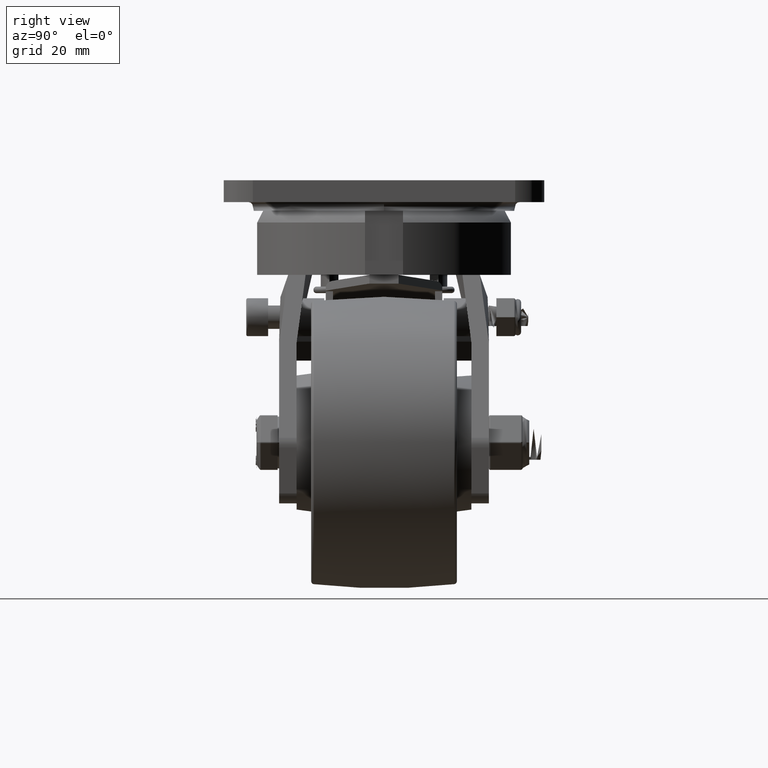
[diagram: clean part render]
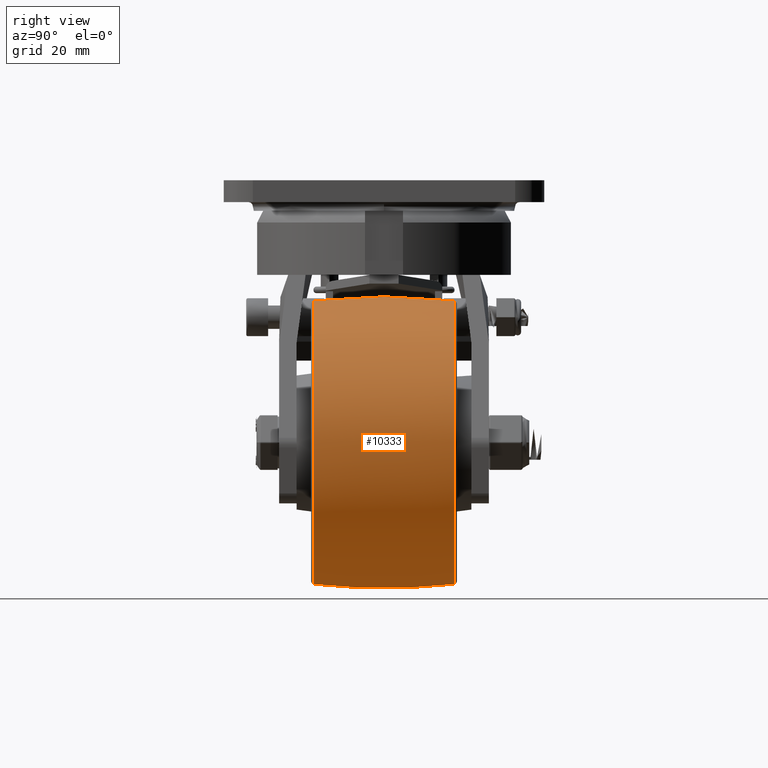
[diagram: same view with one face highlighted and labeled with its STEP entity id]
A machine part, right view. The second image highlights one B-rep face of the part: STEP entity #10333.
In plain terms, the highlighted face is a freeform B-spline surface patch.
Its self-contained STEP definition (entity closure, byte-faithful):
#667=(
BOUNDED_SURFACE()
B_SPLINE_SURFACE(2,2,((#15407,#15408,#15409,#15410,#15411,#15412,#15413,
#15414,#15415),(#15416,#15417,#15418,#15419,#15420,#15421,#15422,#15423,
#15424),(#15425,#15426,#15427,#15428,#15429,#15430,#15431,#15432,#15433)),
 .UNSPECIFIED.,.F.,.T.,.F.)
B_SPLINE_SURFACE_WITH_KNOTS((3,3),(3,2,2,2,3),(-0.115595672632397,0.115595672632396),
(-3.14159265358979,-1.5707963267949,0.,1.5707963267949,3.14159265358979),
 .UNSPECIFIED.)
GEOMETRIC_REPRESENTATION_ITEM()
RATIONAL_B_SPLINE_SURFACE(((1.,0.707106781186548,1.,0.707106781186548,1.,
0.707106781186548,1.,0.707106781186548,1.),(0.99332625661526,0.702387731983299,
0.99332625661526,0.702387731983299,0.99332625661526,0.702387731983299,0.99332625661526,
0.702387731983299,0.99332625661526),(1.,0.707106781186548,1.,0.707106781186548,
1.,0.707106781186548,1.,0.707106781186548,1.)))
REPRESENTATION_ITEM('')
SURFACE()
);
#1270=FACE_OUTER_BOUND('',#1904,.T.);
#1904=EDGE_LOOP('',(#7260,#7261,#7262,#7263));
#4271=CIRCLE('',#11247,48.6046314873025);
#4274=CIRCLE('',#11250,48.6046314873025);
#4275=CIRCLE('',#11251,209.083333333335);
#4704=VERTEX_POINT('',#15402);
#4706=VERTEX_POINT('',#15434);
#5707=EDGE_CURVE('',#4704,#4704,#4271,.T.);
#5710=EDGE_CURVE('',#4706,#4706,#4274,.T.);
#5711=EDGE_CURVE('',#4706,#4704,#4275,.T.);
#7260=ORIENTED_EDGE('',*,*,#5710,.F.);
#7261=ORIENTED_EDGE('',*,*,#5711,.T.);
#7262=ORIENTED_EDGE('',*,*,#5707,.T.);
#7263=ORIENTED_EDGE('',*,*,#5711,.F.);
#10333=ADVANCED_FACE('',(#1270),#667,.F.);
#11247=AXIS2_PLACEMENT_3D('',#15403,#12372,#12373);
#11250=AXIS2_PLACEMENT_3D('',#15435,#12378,#12379);
#11251=AXIS2_PLACEMENT_3D('',#15436,#12380,#12381);
#12372=DIRECTION('center_axis',(0.,1.,0.));
#12373=DIRECTION('ref_axis',(0.,0.,1.));
#12378=DIRECTION('center_axis',(0.,1.,0.));
#12379=DIRECTION('ref_axis',(0.,0.,1.));
#12380=DIRECTION('center_axis',(-1.,0.,1.22464679914735E-16));
#12381=DIRECTION('ref_axis',(-1.22464679914735E-16,0.,-1.));
#15402=CARTESIAN_POINT('',(5.95235063746617E-15,-24.1153384060875,-48.6046314873025));
#15403=CARTESIAN_POINT('Origin',(0.,-24.1153384060875,0.));
#15407=CARTESIAN_POINT('Ctrl Pts',(0.,-24.1153384060875,-48.6046314873025));
#15408=CARTESIAN_POINT('Ctrl Pts',(-48.6046314873025,-24.1153384060875,
-48.6046314873025));
#15409=CARTESIAN_POINT('Ctrl Pts',(-48.6046314873025,-24.1153384060875,
0.));
#15410=CARTESIAN_POINT('Ctrl Pts',(-48.6046314873025,-24.1153384060875,
48.6046314873025));
#15411=CARTESIAN_POINT('Ctrl Pts',(0.,-24.1153384060875,48.6046314873025));
#15412=CARTESIAN_POINT('Ctrl Pts',(48.6046314873025,-24.1153384060875,48.6046314873025));
#15413=CARTESIAN_POINT('Ctrl Pts',(48.6046314873025,-24.1153384060875,0.));
#15414=CARTESIAN_POINT('Ctrl Pts',(48.6046314873025,-24.1153384060875,-48.6046314873025));
#15415=CARTESIAN_POINT('Ctrl Pts',(0.,-24.1153384060875,-48.6046314873025));
#15416=CARTESIAN_POINT('Ctrl Pts',(0.,4.88498130835069E-14,-51.4047434097355));
#15417=CARTESIAN_POINT('Ctrl Pts',(-51.4047434097355,4.88498130835069E-14,
-51.4047434097355));
#15418=CARTESIAN_POINT('Ctrl Pts',(-51.4047434097355,4.88498130835069E-14,
0.));
#15419=CARTESIAN_POINT('Ctrl Pts',(-51.4047434097355,4.88498130835069E-14,
51.4047434097355));
#15420=CARTESIAN_POINT('Ctrl Pts',(0.,4.88498130835069E-14,51.4047434097355));
#15421=CARTESIAN_POINT('Ctrl Pts',(51.4047434097355,4.88498130835069E-14,
51.4047434097355));
#15422=CARTESIAN_POINT('Ctrl Pts',(51.4047434097355,4.88498130835069E-14,
0.));
#15423=CARTESIAN_POINT('Ctrl Pts',(51.4047434097355,4.88498130835069E-14,
-51.4047434097355));
#15424=CARTESIAN_POINT('Ctrl Pts',(0.,4.88498130835069E-14,-51.4047434097355));
#15425=CARTESIAN_POINT('Ctrl Pts',(0.,24.1153384060873,-48.6046314873025));
#15426=CARTESIAN_POINT('Ctrl Pts',(-48.6046314873025,24.1153384060873,-48.6046314873025));
#15427=CARTESIAN_POINT('Ctrl Pts',(-48.6046314873025,24.1153384060873,0.));
#15428=CARTESIAN_POINT('Ctrl Pts',(-48.6046314873025,24.1153384060873,48.6046314873025));
#15429=CARTESIAN_POINT('Ctrl Pts',(0.,24.1153384060873,48.6046314873025));
#15430=CARTESIAN_POINT('Ctrl Pts',(48.6046314873025,24.1153384060873,48.6046314873025));
#15431=CARTESIAN_POINT('Ctrl Pts',(48.6046314873025,24.1153384060873,0.));
#15432=CARTESIAN_POINT('Ctrl Pts',(48.6046314873025,24.1153384060873,-48.6046314873025));
#15433=CARTESIAN_POINT('Ctrl Pts',(0.,24.1153384060873,-48.6046314873025));
#15434=CARTESIAN_POINT('',(5.95235063746617E-15,24.1153384060873,-48.6046314873025));
#15435=CARTESIAN_POINT('Origin',(0.,24.1153384060873,0.));
#15436=CARTESIAN_POINT('Origin',(1.9482089496436E-14,3.46944695195361E-15,
159.083333333335));